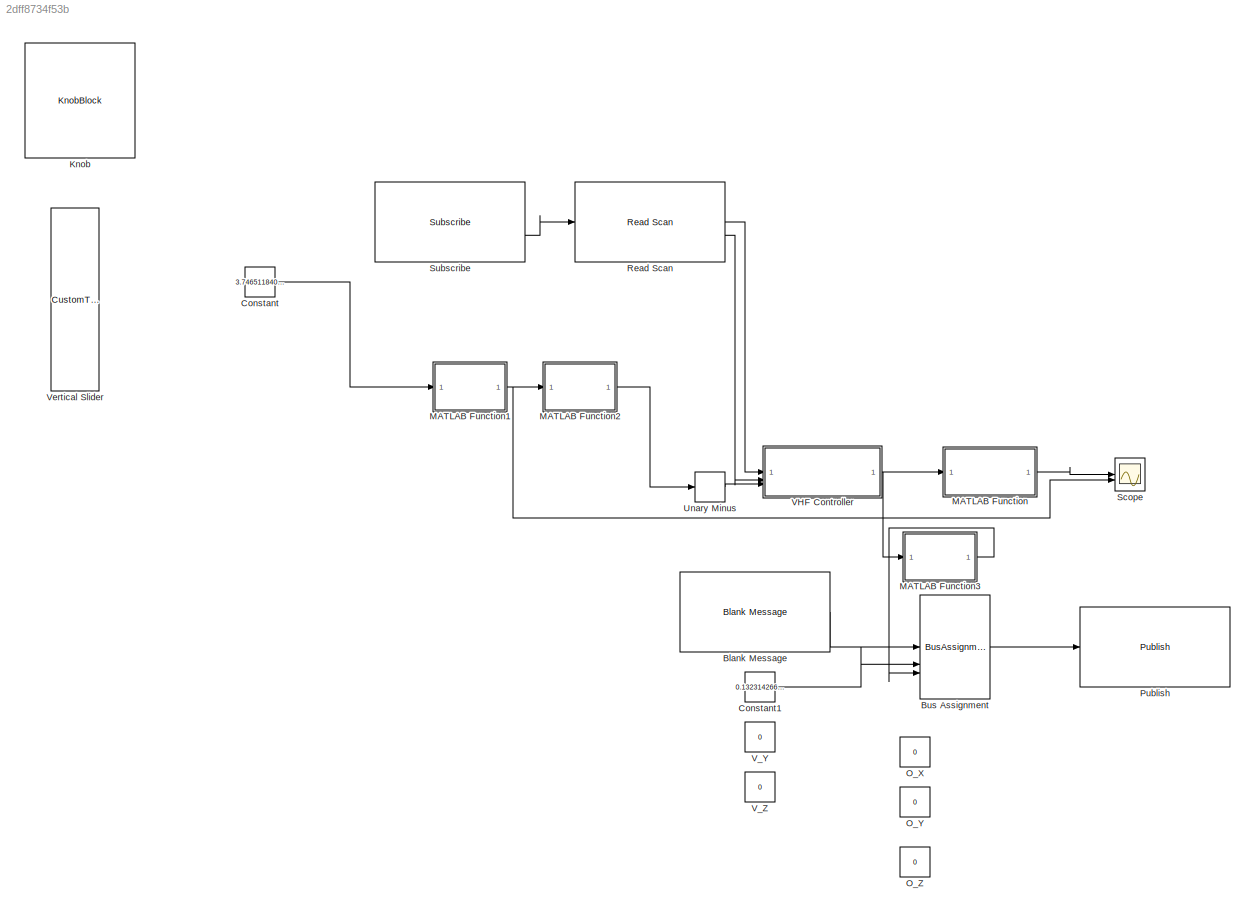
MODEL slx_2dff8734f53b
KIND model
CONFIG AbsTol = auto
CONFIG EnableMultiTasking = off
CONFIG FixedStep = auto
CONFIG MaxStep = auto
CONFIG MinStep = auto
CONFIG RelTol = 1e-3
CONFIG SampleTimeConstraint = Unconstrained
CONFIG SolverName = VariableStepAuto
CONFIG StartTime = 0.0
CONFIG StopTime = inf
WORKSPACE source: mxarray member
WORKSPACE SL_ROS_VariableLengthArrays_MaxSizes: object (value not decoded)
BLOCK [Reference] Blank Message  REF=ros2lib/Blank Message  (lib defined in slx_3c1549211f48)
  SourceBlock = ros2lib/Blank Message
  SourceType = ROS2 Blank Message
BLOCK [BusAssignment] Bus Assignment
  AssignedSignals = linear.x,angular.z
BLOCK [Constant] Constant
  Value = 3.746511840820318
BLOCK [Constant] Constant1
  Value = 0.1323142669296515
BLOCK [KnobBlock] Knob
  ScaleMax = 90
  ScaleMin = -90
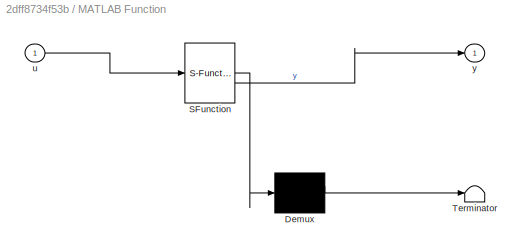
BLOCK [SubSystem] MATLAB Function
  ErrorFcn = Stateflow.Translate.translate
  LibrarySourceBlock = simulink/User-Defined\nFunctions/MATLAB Function
  PermitHierarchicalResolution = ExplicitOnly
  SFBlockType = MATLAB Function
  TreatAsAtomicUnit = on
BLOCK [Demux] MATLAB Function/ Demux 
  Outputs = 1
BLOCK [S-Function] MATLAB Function/ SFunction 
  EnableBusSupport = on
  FunctionName = sf_sfun
  PortCounts = [1 2]
  SFcnIsStateOwnerBlock = off
  SFunctionDeploymentMode = off
  Tag = Stateflow S-Function 4
BLOCK [Terminator] MATLAB Function/ Terminator 
BLOCK [Inport] MATLAB Function/u
BLOCK [Outport] MATLAB Function/y
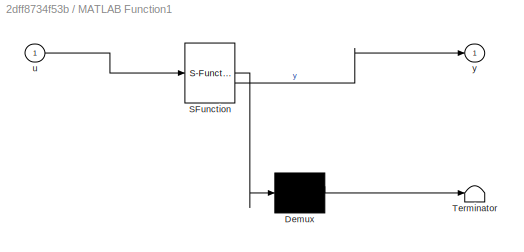
BLOCK [SubSystem] MATLAB Function1
  ErrorFcn = Stateflow.Translate.translate
  LibrarySourceBlock = simulink/User-Defined\nFunctions/MATLAB Function
  PermitHierarchicalResolution = ExplicitOnly
  SFBlockType = MATLAB Function
  TreatAsAtomicUnit = on
BLOCK [Demux] MATLAB Function1/ Demux 
  Outputs = 1
BLOCK [S-Function] MATLAB Function1/ SFunction 
  EnableBusSupport = on
  FunctionName = sf_sfun
  PortCounts = [1 2]
  SFcnIsStateOwnerBlock = off
  SFunctionDeploymentMode = off
  Tag = Stateflow S-Function 1
BLOCK [Terminator] MATLAB Function1/ Terminator 
BLOCK [Inport] MATLAB Function1/u
BLOCK [Outport] MATLAB Function1/y
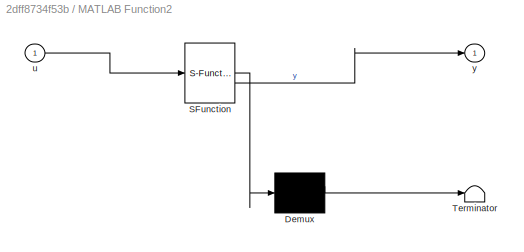
BLOCK [SubSystem] MATLAB Function2
  ErrorFcn = Stateflow.Translate.translate
  LibrarySourceBlock = simulink/User-Defined\nFunctions/MATLAB Function
  PermitHierarchicalResolution = ExplicitOnly
  SFBlockType = MATLAB Function
  TreatAsAtomicUnit = on
BLOCK [Demux] MATLAB Function2/ Demux 
  Outputs = 1
BLOCK [S-Function] MATLAB Function2/ SFunction 
  EnableBusSupport = on
  FunctionName = sf_sfun
  PortCounts = [1 2]
  SFcnIsStateOwnerBlock = off
  SFunctionDeploymentMode = off
  Tag = Stateflow S-Function 3
BLOCK [Terminator] MATLAB Function2/ Terminator 
BLOCK [Inport] MATLAB Function2/u
BLOCK [Outport] MATLAB Function2/y
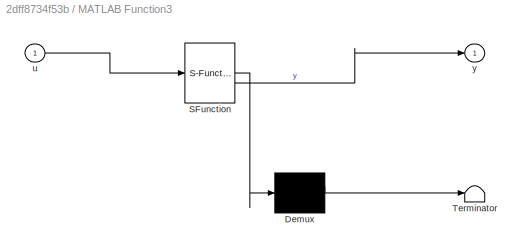
BLOCK [SubSystem] MATLAB Function3
  ErrorFcn = Stateflow.Translate.translate
  LibrarySourceBlock = simulink/User-Defined\nFunctions/MATLAB Function
  PermitHierarchicalResolution = ExplicitOnly
  SFBlockType = MATLAB Function
  TreatAsAtomicUnit = on
BLOCK [Demux] MATLAB Function3/ Demux 
  Outputs = 1
BLOCK [S-Function] MATLAB Function3/ SFunction 
  EnableBusSupport = on
  FunctionName = sf_sfun
  PortCounts = [1 2]
  SFcnIsStateOwnerBlock = off
  SFunctionDeploymentMode = off
  Tag = Stateflow S-Function 5
BLOCK [Terminator] MATLAB Function3/ Terminator 
BLOCK [Inport] MATLAB Function3/u
BLOCK [Outport] MATLAB Function3/y
BLOCK [Constant] O_X
  Value = 0
BLOCK [Constant] O_Y
  Value = 0
BLOCK [Constant] O_Z
  Value = 0
BLOCK [Reference] Publish  REF=ros2lib/Publish  (lib defined in slx_3c1549211f48)
  SourceBlock = ros2lib/Publish
  SourceType = ROS2 Publish
BLOCK [Reference] Read Scan  REF=ros2lib/Read Scan  (lib defined in slx_3c1549211f48)
  SourceBlock = ros2lib/Read Scan
  SourceType = ros.slros2.internal.block.ReadScan
BLOCK [Scope] Scope
  Floating = off
  NumInputPorts = 2
  ScopeSpecificationString = Simulink.scopes.TimeScopeBlockCfg('CurrentConfiguration', extmgr.ConfigurationSet(extmgr.Configuration('Core','General UI',true),extmgr.Configuration('Core','Source UI',true),extmgr.Configuration('Sources','WiredSimulink',true),extmgr.Configuration('Visuals','Time Domain',true,'SerializedDisplays',{struct('MinYLimReal','-8.9081','MaxYLimReal','100.98979','YLabelReal','','MinYLimMag','0.00000','Max...<+1423ch>
BLOCK [Reference] Subscribe  REF=ros2lib/Subscribe  (lib defined in slx_3c1549211f48)
  SourceBlock = ros2lib/Subscribe
  SourceType = ROS2 Subscribe
BLOCK [UnaryMinus] Unary Minus
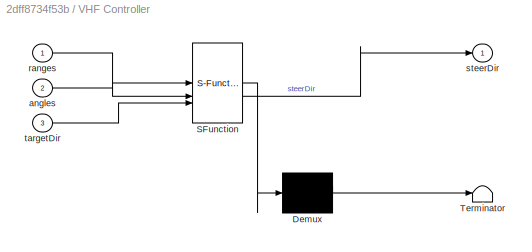
BLOCK [SubSystem] VHF Controller
  ErrorFcn = Stateflow.Translate.translate
  LibrarySourceBlock = simulink/User-Defined\nFunctions/MATLAB Function
  PermitHierarchicalResolution = ExplicitOnly
  SFBlockType = MATLAB Function
  TreatAsAtomicUnit = on
BLOCK [Demux] VHF Controller/ Demux 
  Outputs = 1
BLOCK [S-Function] VHF Controller/ SFunction 
  EnableBusSupport = on
  FunctionName = sf_sfun
  PortCounts = [3 2]
  SFcnIsStateOwnerBlock = off
  SFunctionDeploymentMode = off
  Tag = Stateflow S-Function 2
BLOCK [Terminator] VHF Controller/ Terminator 
BLOCK [Inport] VHF Controller/angles
  Port = 2
BLOCK [Inport] VHF Controller/ranges
BLOCK [Outport] VHF Controller/steerDir
BLOCK [Inport] VHF Controller/targetDir
  Port = 3
BLOCK [Constant] V_Y
  Value = 0
BLOCK [Constant] V_Z
  Value = 0
BLOCK [CustomTuningWebBlock] Vertical Slider
  Configuration = {"components":[{"name":"LinearScaleComponent","settings":{"bounds":{"max":2,"min":0,"tickInterval":"auto"},"internalTickHeightScaleFactor":0.5,"labelColor":[255,255,200],"labelFont":{"font":"Arial","fontSize":12},"labelOffset":0.05,"labelTransparency":1,"needleImage":{"size":[596,842],"src":"data:image\/svg+xml;base64,PD94bWwgdmVyc2lvbj0iMS4wIiBlbmNvZGluZz0idXRmLTgiPz4NCjwhLS0gR2VuZXJhdG9yOiBBZG9i...<+5490ch>
  LabelPosition = Hide
  ShowInitialText = on
LINE Blank Message:1 -> Bus Assignment:1
LINE Bus Assignment:1 -> Publish:1
LINE Constant1:1 -> Bus Assignment:2
LINE Constant:1 -> MATLAB Function1:1
NET MATLAB Function1:1 -> MATLAB Function2:1, Scope:2
LINE MATLAB Function2:1 -> Unary Minus:1
LINE MATLAB Function3:1 -> Bus Assignment:3
LINE MATLAB Function:1 -> Scope:1
LINE Read Scan:1 -> VHF Controller:1
LINE Read Scan:2 -> VHF Controller:2
LINE Subscribe:2 -> Read Scan:1
LINE Unary Minus:1 -> VHF Controller:3
NET VHF Controller:1 -> MATLAB Function3:1, MATLAB Function:1
note: NET lines group one-source signal fan-out (src -> all destinations, sorted); 1:1 wires keep LINE
CHART VHF Controller states=1 transitions=1
  STATE_LABEL 'eML_blk_kernel()'
  STATE_LABEL 'SCRIPT:\nfunction steerDir = fcn(ranges, angles, targetDir)\n\n    vfh = controllerVFH;\n    vfh.UseLidarScan = true;\n    vfh.DistanceLimits = [0.05 1];\n    vfh.RobotRadius = 0.1;\n    vfh.MinTurningRadius = 0.2;\n    vfh.SafetyDistance = 0.1;\n\n    % Create a lidarScan object from the ranges and angles\n    scan = lidarScan(ranges,angles);\n\n% Call VFH object to computer steering direction\nsteerDir = vfh(...<+20ch>'
CHART MATLAB Function2 states=1 transitions=1
  STATE_LABEL 'eML_blk_kernel()'
  STATE_LABEL 'SCRIPT:\nfunction y = to_rad(u)\n\ny = deg2rad(u);\n'
CHART MATLAB Function states=1 transitions=1
  STATE_LABEL 'eML_blk_kernel()'
  STATE_LABEL 'SCRIPT:\nfunction y = from_rad_to_deg(u)\n\ny = rad2deg(u);\n'
CHART MATLAB Function3 states=1 transitions=1
  STATE_LABEL 'eML_blk_kernel()'
  STATE_LABEL 'SCRIPT:\nfunction y = to_double(u)\n\ny = double(u);\n'
CHART MATLAB Function1 states=1 transitions=1
  STATE_LABEL 'eML_blk_kernel()'
  STATE_LABEL 'SCRIPT:\nfunction y = to_single(u)\n\ny = single(u);\n'
CHART  states=0 transitions=0
CHART  states=0 transitions=0
CHART  states=0 transitions=0
CHART  states=0 transitions=0
CHART  states=0 transitions=0
